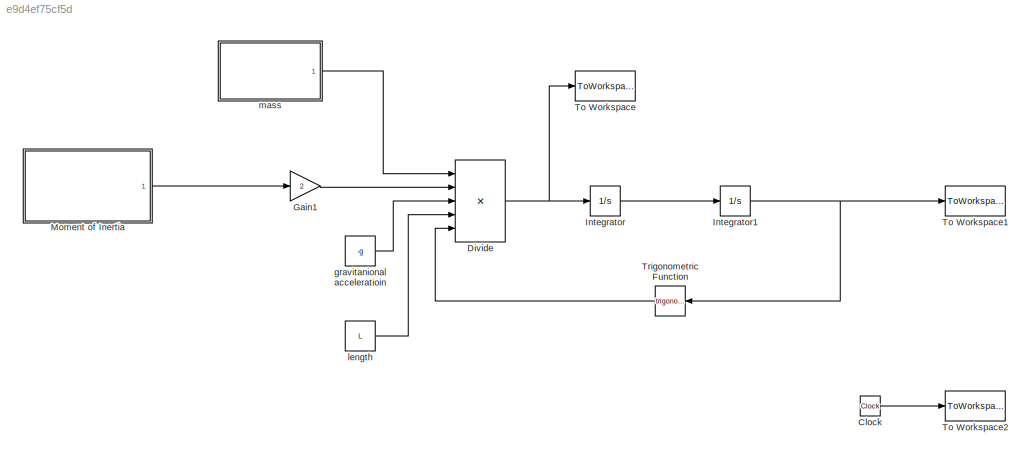
MODEL slx_e9d4ef75cf5d
KIND model
CONFIG AbsTol = auto
CONFIG FixedStep = auto
CONFIG MaxStep = auto
CONFIG MinStep = auto
CONFIG RelTol = 1e-3
CONFIG SampleTimeConstraint = Unconstrained
CONFIG Solver = VariableStepAuto
CONFIG SolverMode = Auto
CONFIG SolverName = VariableStepAuto
CONFIG StartTime = 0.0
CONFIG StopTime = 10.0
BLOCK [Clock] Clock
BLOCK [Product] Divide
  InputSameDT = off
  Inputs = */***
  OutDataTypeStr = Inherit: Inherit via internal rule
  Ports = [5, 1]
  RndMeth = Floor
  SaturateOnIntegerOverflow = off
BLOCK [Gain] Gain1
  Gain = 2
  OutDataTypeStr = Inherit: Inherit via internal rule
  ParamDataTypeStr = Inherit: Inherit via internal rule
  SaturateOnIntegerOverflow = off
BLOCK [Integrator] Integrator
  InitialCondition = v0
  Ports = [1, 1]
BLOCK [Integrator] Integrator1
  InitialCondition = theta0
  Ports = [1, 1]
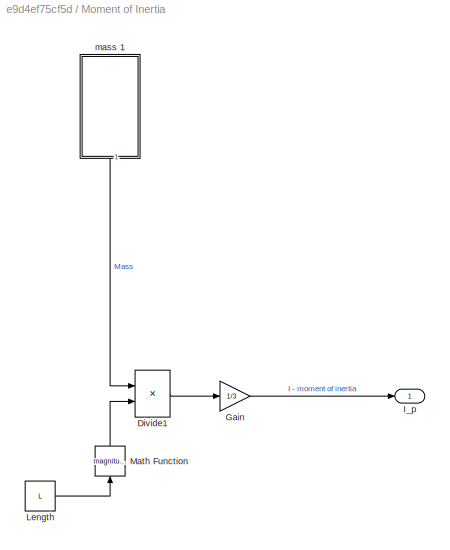
BLOCK [SubSystem] Moment of Inertia
  Ports = [0, 1]
  RequestExecContextInheritance = off
  Variant = off
BLOCK [Product] Moment of Inertia/Divide1
  InputSameDT = off
  Inputs = **
  OutDataTypeStr = Inherit: Inherit via internal rule
  Ports = [2, 1]
  RndMeth = Floor
  SaturateOnIntegerOverflow = off
BLOCK [Gain] Moment of Inertia/Gain
  Gain = 1/3
  OutDataTypeStr = Inherit: Inherit via internal rule
  ParamDataTypeStr = Inherit: Inherit via internal rule
  SaturateOnIntegerOverflow = off
BLOCK [Outport] Moment of Inertia/I_p 
  IconDisplay = Port number
BLOCK [Constant] Moment of Inertia/Length
  Value = L
BLOCK [Math] Moment of Inertia/Math Function
  Operator = magnitude^2
  Ports = [1, 1]
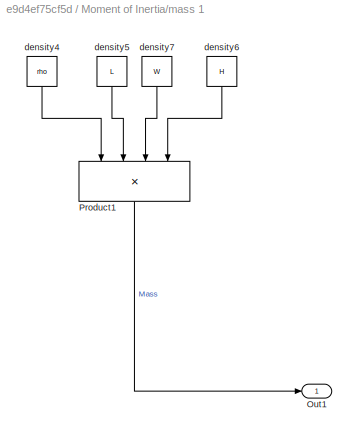
BLOCK [SubSystem] Moment of Inertia/mass 1
  Ports = [0, 1]
  RequestExecContextInheritance = off
  Variant = off
BLOCK [Outport] Moment of Inertia/mass 1/Out1
  IconDisplay = Port number
BLOCK [Product] Moment of Inertia/mass 1/Product1
  InputSameDT = off
  Inputs = 4
  OutDataTypeStr = Inherit: Inherit via internal rule
  Ports = [4, 1]
  RndMeth = Floor
  SaturateOnIntegerOverflow = off
BLOCK [Constant] Moment of Inertia/mass 1/density4
  Value = rho
BLOCK [Constant] Moment of Inertia/mass 1/density5
  Value = L
BLOCK [Constant] Moment of Inertia/mass 1/density6
  Value = H
BLOCK [Constant] Moment of Inertia/mass 1/density7
  Value = W
BLOCK [ToWorkspace] To Workspace
  FixptAsFi = on
  MaxDataPoints = inf
  Ports = [1]
  SampleTime = -1
  Save2DSignal = 3-D array (concatenate along third dimension)
  SaveFormat = Timeseries
  VariableName = theta2
BLOCK [ToWorkspace] To Workspace1
  FixptAsFi = on
  MaxDataPoints = inf
  Ports = [1]
  SampleTime = -1
  Save2DSignal = 3-D array (concatenate along third dimension)
  SaveFormat = Timeseries
  VariableName = theta
BLOCK [ToWorkspace] To Workspace2
  FixptAsFi = on
  MaxDataPoints = inf
  Ports = [1]
  SampleTime = -1
  Save2DSignal = 3-D array (concatenate along third dimension)
  SaveFormat = Timeseries
  VariableName = time
BLOCK [Trigonometry] Trigonometric Function
  Ports = [1, 1]
BLOCK [Constant] gravitanional acceleratioin
  Value = -g
BLOCK [Constant] length
  Value = L
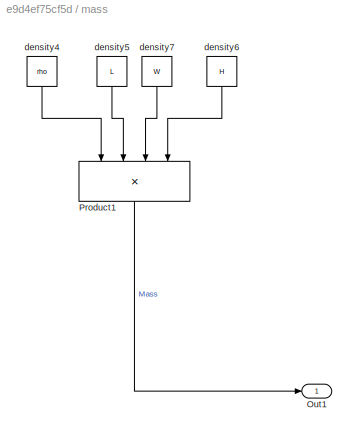
BLOCK [SubSystem] mass 
  Ports = [0, 1]
  RequestExecContextInheritance = off
  Variant = off
BLOCK [Outport] mass /Out1
  IconDisplay = Port number
BLOCK [Product] mass /Product1
  InputSameDT = off
  Inputs = 4
  OutDataTypeStr = Inherit: Inherit via internal rule
  Ports = [4, 1]
  RndMeth = Floor
  SaturateOnIntegerOverflow = off
BLOCK [Constant] mass /density4
  Value = rho
BLOCK [Constant] mass /density5
  Value = L
BLOCK [Constant] mass /density6
  Value = H
BLOCK [Constant] mass /density7
  Value = W
LINE Clock:1 -> To Workspace2:1
NET Divide:1 -> Integrator:1, To Workspace:1
LINE Gain1:1 -> Divide:2
NET Integrator1:1 -> To Workspace1:1, Trigonometric Function:1
LINE Integrator:1 -> Integrator1:1
LINE Moment of Inertia/Divide1:1 -> Moment of Inertia/Gain:1
LINE Moment of Inertia/Gain:1 -> Moment of Inertia/I_p :1
LINE Moment of Inertia/Length:1 -> Moment of Inertia/Math Function:1
LINE Moment of Inertia/Math Function:1 -> Moment of Inertia/Divide1:2
LINE Moment of Inertia/mass 1/Product1:1 -> Moment of Inertia/mass 1/Out1:1
LINE Moment of Inertia/mass 1/density4:1 -> Moment of Inertia/mass 1/Product1:1
LINE Moment of Inertia/mass 1/density5:1 -> Moment of Inertia/mass 1/Product1:2
LINE Moment of Inertia/mass 1/density6:1 -> Moment of Inertia/mass 1/Product1:4
LINE Moment of Inertia/mass 1/density7:1 -> Moment of Inertia/mass 1/Product1:3
LINE Moment of Inertia/mass 1:1 -> Moment of Inertia/Divide1:1
LINE Moment of Inertia:1 -> Gain1:1
LINE Trigonometric Function:1 -> Divide:5
LINE gravitanional acceleratioin:1 -> Divide:3
LINE length:1 -> Divide:4
LINE mass /Product1:1 -> mass /Out1:1
LINE mass /density4:1 -> mass /Product1:1
LINE mass /density5:1 -> mass /Product1:2
LINE mass /density6:1 -> mass /Product1:4
LINE mass /density7:1 -> mass /Product1:3
LINE mass :1 -> Divide:1
note: NET lines group one-source signal fan-out (src -> all destinations, sorted); 1:1 wires keep LINE
